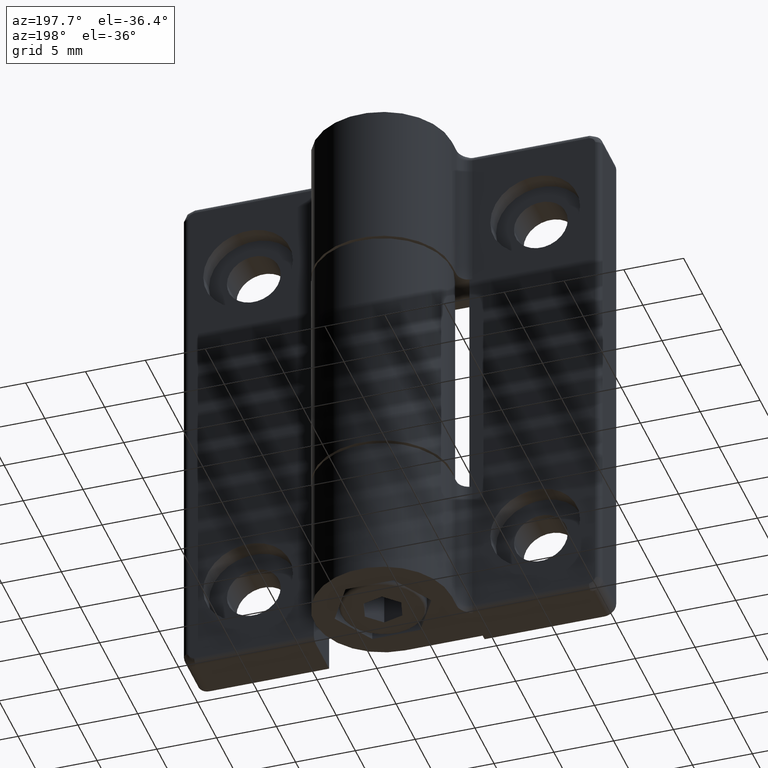
[diagram: clean part render]
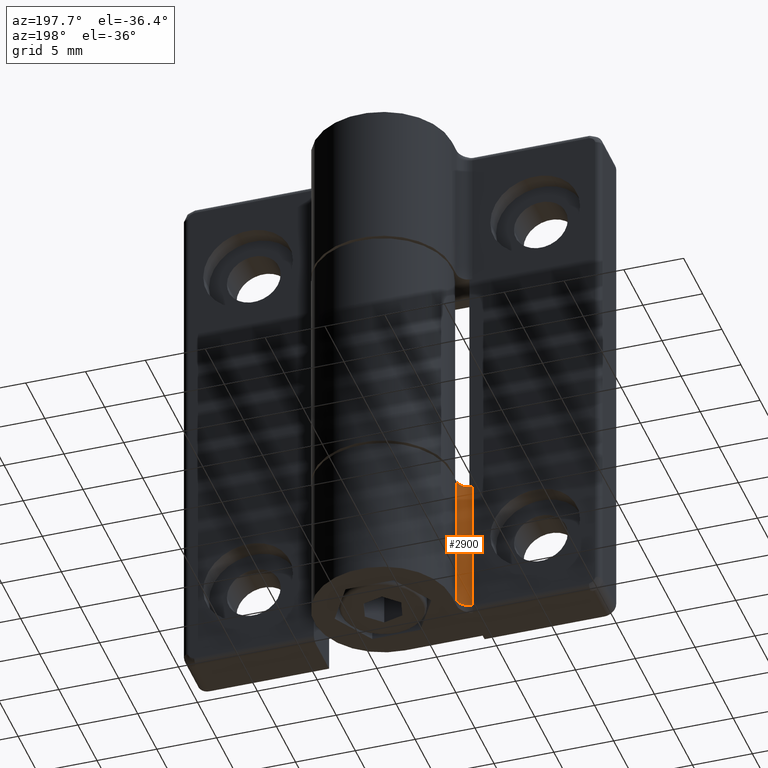
[diagram: same view with one face highlighted and labeled with its STEP entity id]
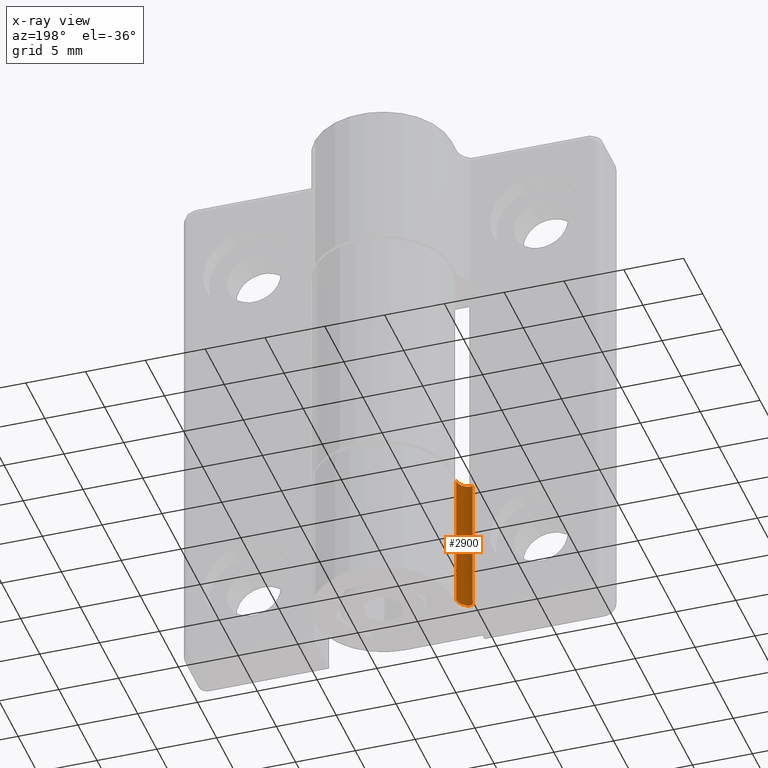
[diagram: x-ray of the same camera — body ghosted, the highlighted face saturated]
A machine part, auxiliary view. The second image highlights one B-rep face of the part: STEP entity #2900.
The next image is the same camera in x-ray: the body ghosted, the highlighted face saturated — about 0% of this face is hidden behind the body in this view.
In plain terms, the highlighted cylindrical surface (edge-blend (fillet) strip) has radius 1 mm, axis along (0, 0, -1).
Its self-contained STEP definition (entity closure, byte-faithful):
#412=FACE_OUTER_BOUND('',#526,.T.);
#526=EDGE_LOOP('',(#1924,#1925,#1926,#1927));
#680=LINE('',#3739,#834);
#681=LINE('',#3742,#835);
#834=VECTOR('',#3211,11.75);
#835=VECTOR('',#3214,11.75);
#988=CIRCLE('',#3020,1.);
#989=CIRCLE('',#3021,1.);
#1062=VERTEX_POINT('',#3735);
#1063=VERTEX_POINT('',#3736);
#1064=VERTEX_POINT('',#3738);
#1065=VERTEX_POINT('',#3740);
#1452=EDGE_CURVE('',#1062,#1063,#988,.T.);
#1453=EDGE_CURVE('',#1063,#1064,#680,.T.);
#1454=EDGE_CURVE('',#1064,#1065,#989,.T.);
#1455=EDGE_CURVE('',#1065,#1062,#681,.T.);
#1924=ORIENTED_EDGE('',*,*,#1452,.T.);
#1925=ORIENTED_EDGE('',*,*,#1453,.T.);
#1926=ORIENTED_EDGE('',*,*,#1454,.T.);
#1927=ORIENTED_EDGE('',*,*,#1455,.T.);
#2868=CYLINDRICAL_SURFACE('',#3019,1.);
#2900=ADVANCED_FACE('',(#412),#2868,.F.);
#3019=AXIS2_PLACEMENT_3D('',#3734,#3207,#3208);
#3020=AXIS2_PLACEMENT_3D('',#3737,#3209,#3210);
#3021=AXIS2_PLACEMENT_3D('',#3741,#3212,#3213);
#3207=DIRECTION('center_axis',(0.,1.,0.));
#3208=DIRECTION('ref_axis',(0.707106781186548,0.,-0.707106781186547));
#3209=DIRECTION('center_axis',(0.,-1.,0.));
#3210=DIRECTION('ref_axis',(0.707106781186548,0.,-0.707106781186547));
#3211=DIRECTION('',(0.,1.,0.));
#3212=DIRECTION('center_axis',(0.,1.,0.));
#3213=DIRECTION('ref_axis',(1.,0.,0.));
#3214=DIRECTION('',(0.,-1.,0.));
#3734=CARTESIAN_POINT('Origin',(10.75,0.,5.));
#3735=CARTESIAN_POINT('',(10.75,10.25,4.));
#3736=CARTESIAN_POINT('',(11.75,10.25,5.));
#3737=CARTESIAN_POINT('Origin',(10.75,10.25,5.));
#3738=CARTESIAN_POINT('',(11.75,22.,5.));
#3739=CARTESIAN_POINT('',(11.75,0.,5.));
#3740=CARTESIAN_POINT('',(10.75,22.,4.));
#3741=CARTESIAN_POINT('Origin',(10.75,22.,5.));
#3742=CARTESIAN_POINT('',(10.75,0.,4.));